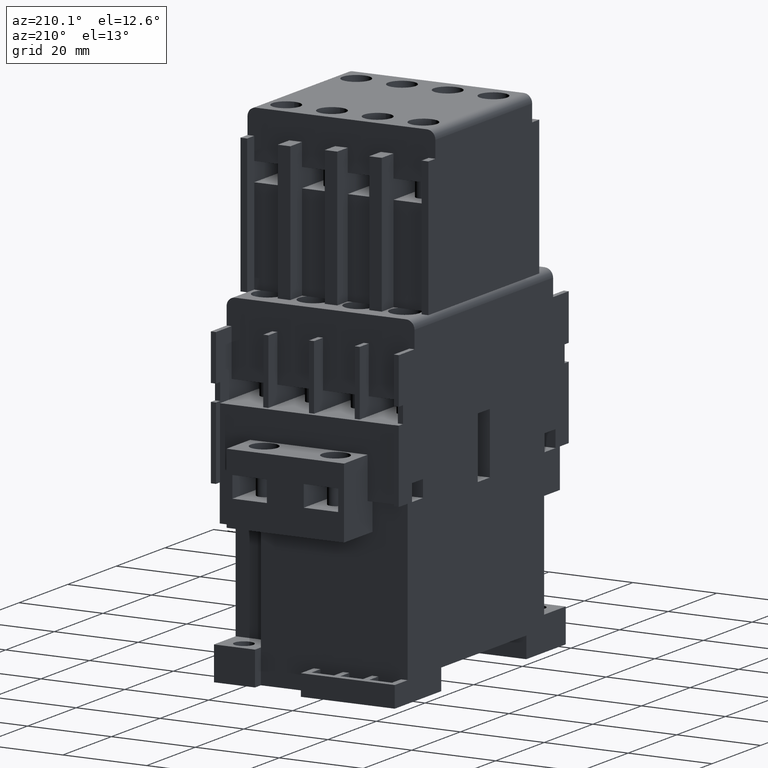
[diagram: clean part render]
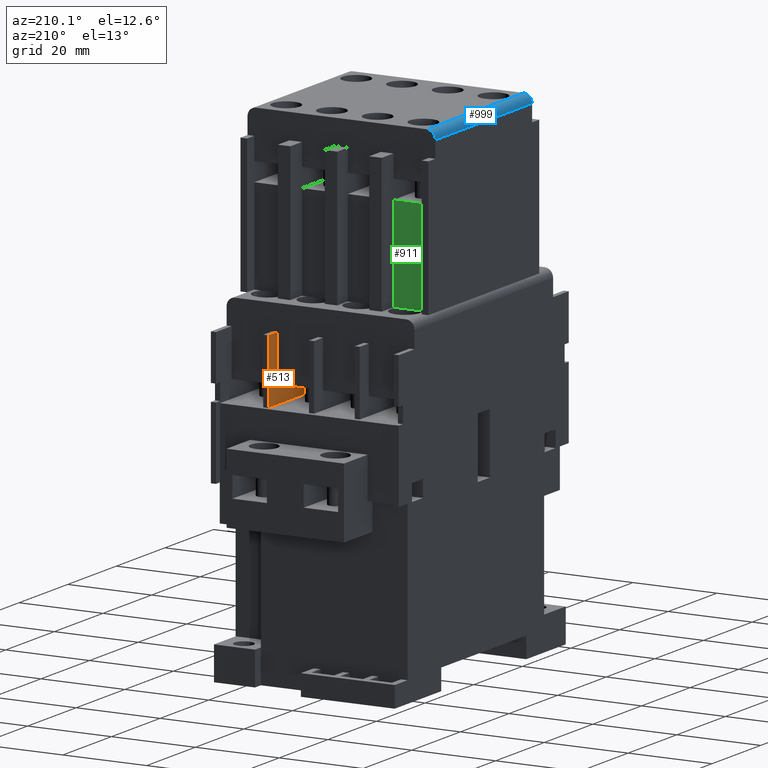
[diagram: same view with three faces highlighted in distinct colors, each labeled with its STEP entity id]
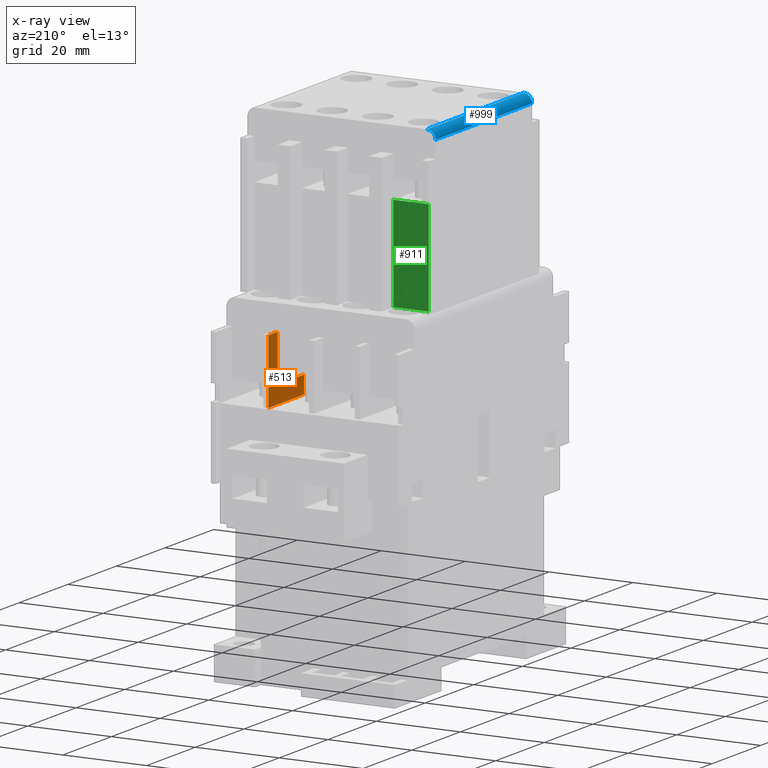
[diagram: x-ray of the same camera — body ghosted, the three highlighted faces saturated]
A machine part, auxiliary view with three faces highlighted in distinct colors.
The next image is the same camera in x-ray (body ghosted, the three faces saturated) — at least one of them is partly hidden behind the body in this view.
Their STEP definitions:

[orange] entity #513 — the highlighted planar face has unit normal (1, 0, 0).
#513=ADVANCED_FACE('',(#1654),#1128,.F.);
#1128=PLANE('',#11910);
#1654=FACE_OUTER_BOUND('',#2227,.T.);
#2227=EDGE_LOOP('',(#3900,#3901,#3902,#3903,#3904,#3905));
#3900=ORIENTED_EDGE('',*,*,#7995,.T.);
#3901=ORIENTED_EDGE('',*,*,#8033,.F.);
#3902=ORIENTED_EDGE('',*,*,#7786,.F.);
#3903=ORIENTED_EDGE('',*,*,#8034,.F.);
#3904=ORIENTED_EDGE('',*,*,#7932,.T.);
#3905=ORIENTED_EDGE('',*,*,#7980,.T.);
#6648=VERTEX_POINT('',#16428);
#6649=VERTEX_POINT('',#16430);
#6787=VERTEX_POINT('',#16735);
#6788=VERTEX_POINT('',#16737);
#6820=VERTEX_POINT('',#16824);
#6829=VERTEX_POINT('',#16854);
#7786=EDGE_CURVE('',#6648,#6649,#9367,.T.);
#7932=EDGE_CURVE('',#6788,#6787,#9460,.T.);
#7980=EDGE_CURVE('',#6787,#6820,#9497,.T.);
#7995=EDGE_CURVE('',#6820,#6829,#9512,.T.);
#8033=EDGE_CURVE('',#6649,#6829,#9550,.T.);
#8034=EDGE_CURVE('',#6788,#6648,#9551,.T.);
#9367=LINE('',#16429,#10718);
#9460=LINE('',#16736,#10811);
#9497=LINE('',#16825,#10848);
#9512=LINE('',#16853,#10863);
#9550=LINE('',#16926,#10901);
#9551=LINE('',#16927,#10902);
#10718=VECTOR('',#13061,1.);
#10811=VECTOR('',#13304,1.);
#10848=VECTOR('',#13379,1.);
#10863=VECTOR('',#13404,1.);
#10901=VECTOR('',#13494,1.);
#10902=VECTOR('',#13495,1.);
#11910=AXIS2_PLACEMENT_3D('',#16928,#13496,#13497);
#13061=DIRECTION('',(0.,1.,3.75075346157147E-015));
#13304=DIRECTION('',(0.,1.,0.));
#13379=DIRECTION('',(0.,0.,1.));
#13404=DIRECTION('',(0.,1.,3.75075346157147E-015));
#13494=DIRECTION('',(0.,0.,1.));
#13495=DIRECTION('',(0.,0.,-1.));
#13496=DIRECTION('',(1.,0.,0.));
#13497=DIRECTION('',(0.,0.,-1.));
#16428=CARTESIAN_POINT('',(10.3,17.5,54.05));
#16429=CARTESIAN_POINT('',(10.3,28.5,54.05));
#16430=CARTESIAN_POINT('',(10.3,32.2,54.05));
#16735=CARTESIAN_POINT('',(10.3,28.5,58.25));
#16736=CARTESIAN_POINT('',(10.3,17.5,58.25));
#16737=CARTESIAN_POINT('',(10.3,17.5,58.25));
#16824=CARTESIAN_POINT('',(10.3,28.5,69.4));
#16825=CARTESIAN_POINT('',(10.3,28.5,54.05));
#16853=CARTESIAN_POINT('',(10.3,28.5,69.4));
#16854=CARTESIAN_POINT('',(10.3,32.2,69.4));
#16926=CARTESIAN_POINT('',(10.3,32.2,54.05));
#16927=CARTESIAN_POINT('',(10.3,17.5,58.25));
#16928=CARTESIAN_POINT('',(10.3,28.5,54.05));

[blue] entity #999 — the highlighted cylindrical surface (edge-blend (fillet) strip) has radius 2 mm, axis along (0, -1, 0).
#169=CYLINDRICAL_SURFACE('',#12562,2.);
#999=ADVANCED_FACE('',(#2054),#169,.T.);
#2054=FACE_OUTER_BOUND('',#2807,.T.);
#2807=EDGE_LOOP('',(#6169,#6170,#6171,#6172));
#3031=CIRCLE('',#12295,2.);
#3081=CIRCLE('',#12450,2.);
#6169=ORIENTED_EDGE('',*,*,#8528,.F.);
#6170=ORIENTED_EDGE('',*,*,#8517,.F.);
#6171=ORIENTED_EDGE('',*,*,#8786,.F.);
#6172=ORIENTED_EDGE('',*,*,#8576,.F.);
#7101=VERTEX_POINT('',#17962);
#7103=VERTEX_POINT('',#17965);
#7111=VERTEX_POINT('',#17986);
#7142=VERTEX_POINT('',#18076);
#8517=EDGE_CURVE('',#7101,#7103,#9946,.T.);
#8528=EDGE_CURVE('',#7103,#7111,#3031,.T.);
#8576=EDGE_CURVE('',#7111,#7142,#9997,.T.);
#8786=EDGE_CURVE('',#7142,#7101,#3081,.T.);
#9946=LINE('',#17964,#11297);
#9997=LINE('',#18075,#11348);
#11297=VECTOR('',#14644,1.);
#11348=VECTOR('',#14737,1.);
#12295=AXIS2_PLACEMENT_3D('',#17985,#14665,#14666);
#12450=AXIS2_PLACEMENT_3D('',#18520,#15183,#15184);
#12562=AXIS2_PLACEMENT_3D('',#18860,#15551,#15552);
#14644=DIRECTION('',(0.,-1.,0.));
#14665=DIRECTION('',(0.,-1.,0.));
#14666=DIRECTION('',(0.,0.,1.));
#14737=DIRECTION('',(0.,1.,0.));
#15183=DIRECTION('',(0.,1.,0.));
#15184=DIRECTION('',(0.,0.,-1.));
#15551=DIRECTION('',(0.,-1.,0.));
#15552=DIRECTION('',(0.,0.,-1.));
#17962=CARTESIAN_POINT('',(-20.4,19.9,114.));
#17964=CARTESIAN_POINT('',(-20.4,-19.9,114.));
#17965=CARTESIAN_POINT('',(-20.4,-19.9,114.));
#17985=CARTESIAN_POINT('',(-20.4,-19.9,112.));
#17986=CARTESIAN_POINT('',(-22.4,-19.9,112.));
#18075=CARTESIAN_POINT('',(-22.4,19.9,112.));
#18076=CARTESIAN_POINT('',(-22.4,19.9,112.));
#18520=CARTESIAN_POINT('',(-20.4,19.9,112.));
#18860=CARTESIAN_POINT('',(-20.4,1.07016788684984E-012,112.));

[green] entity #911 — the highlighted planar face has unit normal (0, -1, 0).
#911=ADVANCED_FACE('',(#1982),#1478,.F.);
#1478=PLANE('',#12454);
#1982=FACE_OUTER_BOUND('',#2703,.T.);
#2703=EDGE_LOOP('',(#5755,#5756,#5757,#5758,#5759,#5760,#5761));
#5755=ORIENTED_EDGE('',*,*,#8805,.F.);
#5756=ORIENTED_EDGE('',*,*,#7418,.F.);
#5757=ORIENTED_EDGE('',*,*,#8422,.F.);
#5758=ORIENTED_EDGE('',*,*,#7416,.F.);
#5759=ORIENTED_EDGE('',*,*,#8423,.F.);
#5760=ORIENTED_EDGE('',*,*,#8806,.T.);
#5761=ORIENTED_EDGE('',*,*,#8807,.F.);
#6322=VERTEX_POINT('',#15702);
#6323=VERTEX_POINT('',#15704);
#6324=VERTEX_POINT('',#15706);
#6325=VERTEX_POINT('',#15708);
#7011=VERTEX_POINT('',#17764);
#7295=VERTEX_POINT('',#18554);
#7296=VERTEX_POINT('',#18556);
#7416=EDGE_CURVE('',#6322,#6323,#9025,.T.);
#7418=EDGE_CURVE('',#6324,#6325,#9026,.T.);
#8422=EDGE_CURVE('',#6323,#6324,#9881,.T.);
#8423=EDGE_CURVE('',#7011,#6322,#9882,.T.);
#8805=EDGE_CURVE('',#6325,#7295,#10176,.T.);
#8806=EDGE_CURVE('',#7011,#7296,#10177,.T.);
#8807=EDGE_CURVE('',#7295,#7296,#10178,.T.);
#9025=LINE('',#15703,#10376);
#9026=LINE('',#15707,#10377);
#9881=LINE('',#17761,#11232);
#9882=LINE('',#17763,#11233);
#10176=LINE('',#18553,#11527);
#10177=LINE('',#18555,#11528);
#10178=LINE('',#18557,#11529);
#10376=VECTOR('',#12603,1.);
#10377=VECTOR('',#12606,1.);
#11232=VECTOR('',#14487,1.);
#11233=VECTOR('',#14490,1.);
#11527=VECTOR('',#15208,1.);
#11528=VECTOR('',#15209,1.);
#11529=VECTOR('',#15210,1.);
#12454=AXIS2_PLACEMENT_3D('',#18558,#15211,#15212);
#12603=DIRECTION('',(1.,0.,0.));
#12606=DIRECTION('',(1.,0.,0.));
#14487=DIRECTION('',(1.,0.,0.));
#14490=DIRECTION('',(1.,0.,0.));
#15208=DIRECTION('',(0.,0.,1.));
#15209=DIRECTION('',(0.,0.,1.));
#15210=DIRECTION('',(-1.,0.,0.));
#15211=DIRECTION('',(0.,-1.,0.));
#15212=DIRECTION('',(0.,0.,1.));
#15702=CARTESIAN_POINT('',(-20.4,19.9,75.5));
#15703=CARTESIAN_POINT('',(-12.4,19.9,75.5000000000005));
#15704=CARTESIAN_POINT('',(-19.1499999999999,19.9,75.5));
#15706=CARTESIAN_POINT('',(-13.55,19.9,75.5));
#15707=CARTESIAN_POINT('',(-12.4,19.9,75.5000000000005));
#15708=CARTESIAN_POINT('',(-12.4,19.8999999999999,75.5));
#17761=CARTESIAN_POINT('',(-12.4,19.9,75.5000000000005));
#17763=CARTESIAN_POINT('',(-12.4,19.9,75.5000000000005));
#17764=CARTESIAN_POINT('',(-20.8,19.9,75.5000000000006));
#18553=CARTESIAN_POINT('',(-12.4,19.8999999999999,72.25));
#18554=CARTESIAN_POINT('',(-12.4,19.8999999999999,98.2));
#18555=CARTESIAN_POINT('',(-20.8,19.9,72.25));
#18556=CARTESIAN_POINT('',(-20.8,19.9,98.2));
#18557=CARTESIAN_POINT('',(-12.4,19.9,98.2));
#18558=CARTESIAN_POINT('',(-22.4,19.9,108.));